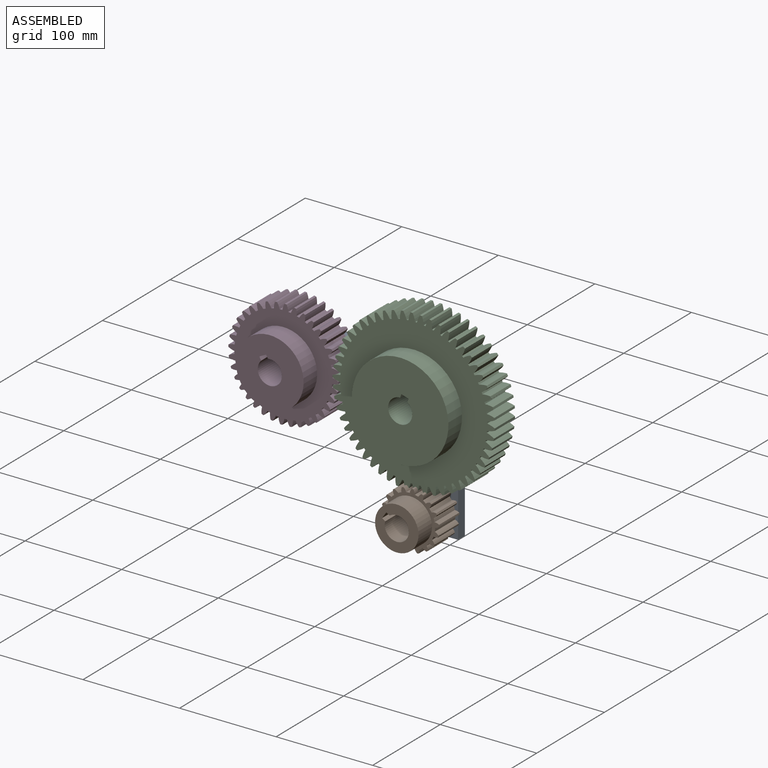
[diagram: assembled view]
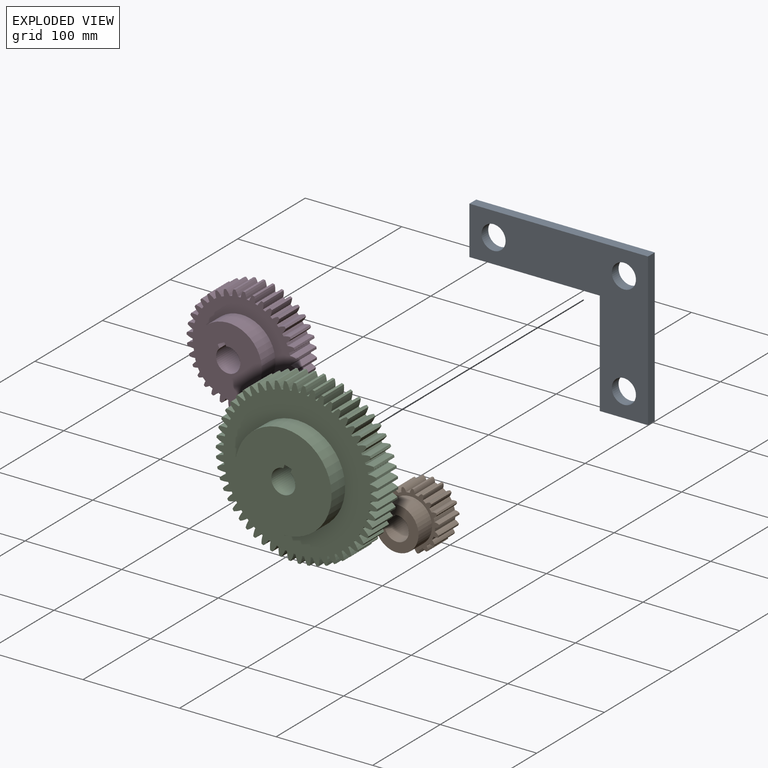
[diagram: exploded view]
GUIDED TOUR — MATED ASSEMBLY (Onshape document e4bec5e372876e78c3829ebe, AutoMate assembly e4bec5e372876e78c3829ebe_32165d2fcf4f0a64c382796b_5c9ba61deebb331a1b30283e_default)

This assembly has 4 components, labeled P0..P3 below (a component is one placed occurrence of a part; the same part can appear more than once), held together by 3 mates. A mate is a constraint between two components; its type names the relative motion it leaves free:
  REVOLUTE — leaves rotation about the listed axis free (a hinge).
Axis/direction vectors are unit vectors and 'through' points are millimeter coordinates, both in the assembly's world frame.

MATES
  1. REVOLUTE "Revolute 1": P0 <-> P3, axis (0.000, 1.000, 0.000) through (-47.42, -5.87, 16.33) mm
  2. REVOLUTE "Revolute 2": P0 <-> P2, axis (0.000, 1.000, 0.000) through (87.58, -5.87, 16.33) mm
  3. REVOLUTE "Revolute 3": P0 <-> P1, axis (0.000, -1.000, 0.000) through (87.58, -5.87, -91.67) mm

ASSEMBLY ORDER
  1. P1 — the base component [order verified]
  2. P2 [order verified]
  3. P3 [order verified]
  4. P0 [order verified]
Order-tag legend:
  [order verified] — this step's position reverses a verified removal order: the component was checked to insert without passing through the ones already placed.

Of the 4 components, 4 carry the full construction recipe — the FeatureScript program that regenerates the part's solid from scratch; the rest are supplied as boundary geometry only.
Each toured component is shown spotlighted twice — in the assembled view, then in the exploded view, where a leader line traces a displaced component back to its assembled socket (saturated green if recipe-attached, orange if geometry-only; every other component desaturated gray) — followed by its recipe or geometry summary and the mates that hold it.
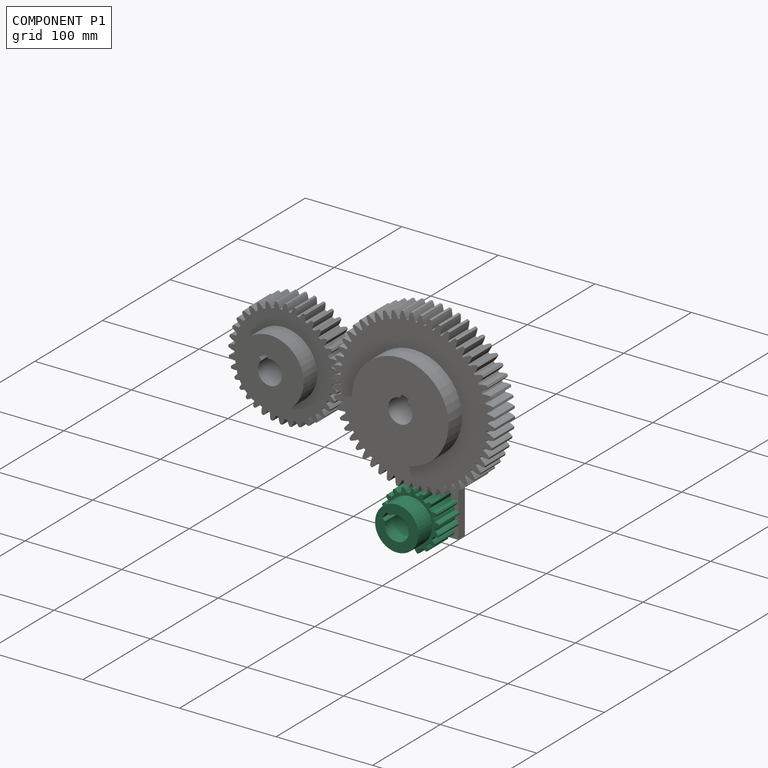
[diagram: component P1 — assembled]
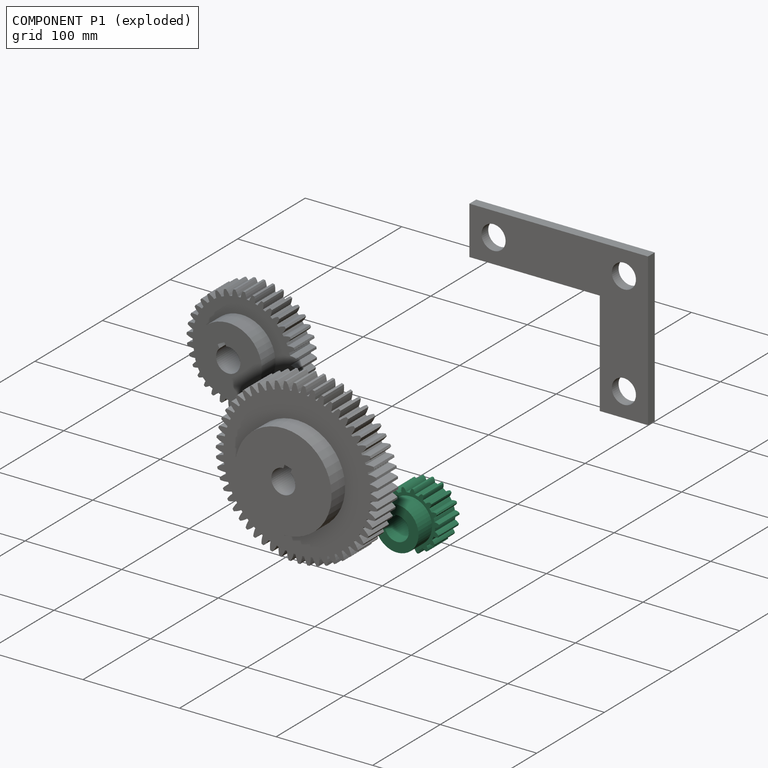
[diagram: component P1 — exploded]
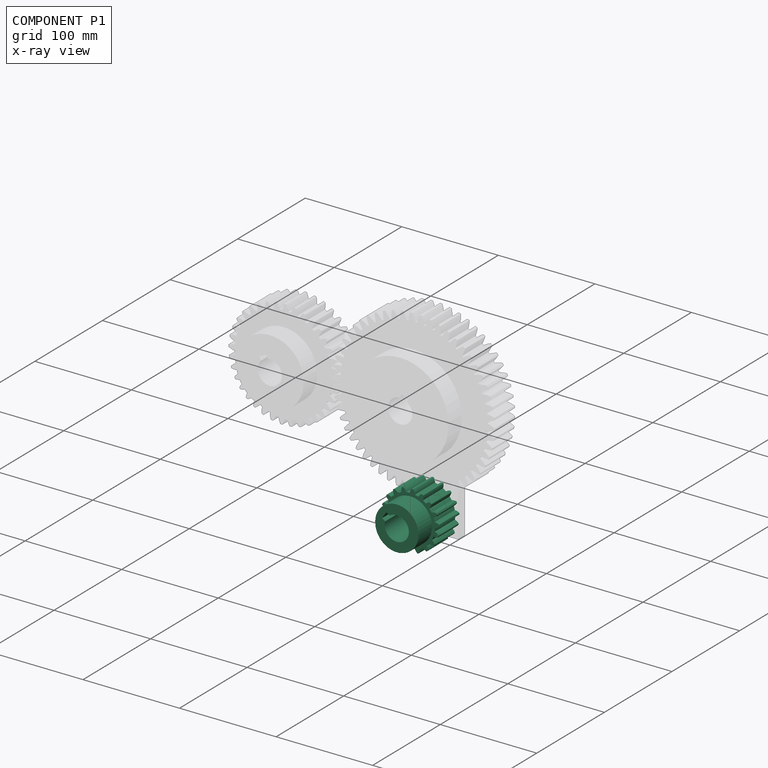
[diagram: component P1 — x-ray view]
COMPONENT P1 — recipe-attached (CADFS 00927240, mesh-verified: the recipe's output STEP matches this component's geometry to below the mesh-comparison resolution (tessellation chordal tolerance ~0.147 mm)).
Held by: REVOLUTE mate "Revolute 3" to P0.
Construction recipe (FeatureScript — the CAD program that rebuilds this solid; sketch coordinates are in the units given by the * unit suffixes, e.g. mm):

FeatureScript 1511;
import(path : "onshape/std/geometry.fs", version : "1511.0");
import(path : "onshape/std/common.fs", version : "1511.0");
const mm = millimeter;
const VERTEX = EntityType.VERTEX;
const EDGE = EntityType.EDGE;
const FACE = EntityType.FACE;
const BODY = EntityType.BODY;
function v(x, y){return vector(x, y);}
function OD(order){return orderDisambiguation(order);}
function OSD(set){return originalSetDisambiguation(set);}
function TD(topology){return topologyDisambiguation(topology);}
function TDD(query){return trueDependencyDisambiguation(query);}
function sQuery(a, b, c) {return sketchEntityQuery(a, b, c);}

annotation { "Feature Type Name" : "Feature", "Feature Type Description" : "" }
export const myFeature = defineFeature(function(context is Context, id is Id, definition is map)
    precondition{}
    {
        {
            var Q0;
            Q0=qCreatedBy(makeId("Front.planeOp"),FACE);
            var sketch = newSketch(context, id + "F0", { "sketchPlane" : qUnion([Q0])});
            skCircle(sketch, "E0", {"center": v(0, 0) * mm, "radius": 25.6 * mm});
            skSolve(sketch);
        }
        {
            var Q0;
            Q0=qSketchRegion(id+"F0",true);
            extrude(context, id + "F1", {"entities" : qUnion([Q0]), "depth" : 30 * mm, "offsetDistance" : 25 * mm});
        }
        {
            var Q0;
            Q0=qCreatedBy(makeId("Front.planeOp"),FACE);
            var sketch = newSketch(context, id + "F2", { "sketchPlane" : qUnion([Q0])});
            skArc(sketch, "E1", {"start": v(2.57, 25.47) * mm, "mid": v(0, 25.6) * mm, "end": v(-2.57, 25.47) * mm});
            skCircle(sketch, "E2", {"center": v(0, 0) * mm, "radius": 27 * mm, "construction": true});
            skArc(sketch, "E3", {"start": v(0.91, 29.99) * mm, "mid": v(0, 30) * mm, "end": v(-0.91, 29.99) * mm});
            skLineSegment(sketch, "E4", {"start": v(0, 0) * mm, "end": v(-2.35, 26.9) * mm, "construction": true});
            skLineSegment(sketch, "E5", {"start": v(-2.35, 26.9) * mm, "end": v(5.99, 24.89) * mm, "construction": true});
            skArc(sketch, "E6", {"start": v(-0.91, 29.99) * mm, "mid": v(-2.07, 27.85) * mm, "end": v(-2.57, 25.47) * mm});
            skArc(sketch, "E7.MirrorC", {"start": v(0.91, 29.99) * mm, "mid": v(2.07, 27.85) * mm, "end": v(2.57, 25.47) * mm});
            skLineSegment(sketch, "E8.MirrorCS", {"start": v(0, 0) * mm, "end": v(2.35, 26.9) * mm, "construction": true});
            skSolve(sketch);
        }
        {
            var Q0;
            Q0=qSketchRegion(id+"F2",true);
            var Q1;
            Q1=qConstructionFilter(qBodyType(qCreatedBy(id+"F2",EDGE),BodyType.WIRE),ConstructionObject.NO);
            var Q2;
            Q2=makeQuery(id+"F1.opExtrude","CAP_FACE",FACE,{"disambiguationData":[OSD([sQuery(id+"F0.wireOp",EDGE,"E0")])],"isStart":false});
            extrude(context, id + "F3", {"entities" : qUnion([Q0]), "surfaceEntities" : qUnion([Q1]), "endBound" : BoundingType.UP_TO_SURFACE, "depth" : 25 * mm, "endBoundEntityFace" : qUnion([Q2]), "offsetDistance" : 25 * mm});
        }
        {
            var Q0;
            Q0=makeQuery(id+"F3.opExtrude","SWEPT_BODY",BODY,{"disambiguationData":[OSD([sQuery(id+"F2.wireOp",EDGE,"E1"),sQuery(id+"F2.wireOp",EDGE,"E3"),sQuery(id+"F2.wireOp",EDGE,"E6"),sQuery(id+"F2.wireOp",EDGE,"E7.MirrorC")])]});
            var Q1;
            Q1=makeQuery(id+"F1.opExtrude","SWEPT_FACE",FACE,{"disambiguationData":[OSD([sQuery(id+"F0.wireOp",EDGE,"E0")])]});
            var Q2;
            Q2=makeQuery(id+"F1.opExtrude","SWEPT_BODY",BODY,{"disambiguationData":[OSD([sQuery(id+"F0.wireOp",EDGE,"E0")])]});
            circularPattern(context, id + "F4", {"operationType" : NewBodyOperationType.ADD, "entities" : qUnion([Q0]), "axis" : qUnion([Q1]), "angle" : 360 * degree, "instanceCount" : 18, "equalSpace" : true});
        }
        {
            var Q0;
            {var subQ0=makeQuery(id+"F3.opExtrude","CAP_FACE",FACE,{"disambiguationData":[OSD([sQuery(id+"F2.wireOp",EDGE,"27ea40b5-a951-41fe-b2b0-23b0c8f32f99"),sQuery(id+"F2.wireOp",EDGE,"g5MLrJZe-8DIj-dw4J-t7d3-wYIBbitemDrg"),sQuery(id+"F2.wireOp",EDGE,"a7c40835-1b0c-4428-97f4-bc1f4e4d2cdc0.MirrorCS"),sQuery(id+"F2.wireOp",EDGE,"71bf0348-7fa4-4463-ad31-61e3cc7938440.MirrorCS"),sQuery(id+"F2.wireOp",EDGE,"zAWKabWg-Dy0p-7wie-48dv-3QK1t6ZuBW5s"),sQuery(id+"F2.wireOp",EDGE,"8dd9605d-b27a-4633-b43e-2126b32a17ce.trimOffspring")])],"isStart":false});Q0=makeQuery(id+"F4.boolean.opBoolean","MERGE",FACE,{"derivedFrom":[makeQuery(id+"F1.opExtrude","CAP_FACE",FACE,{"disambiguationData":[OSD([sQuery(id+"F0.wireOp",EDGE,"E0")])],"isStart":false}),subQ0,makeQuery(id+"F4.opPattern","COPY",FACE,{"derivedFrom":subQ0,"instanceName":"1"}),makeQuery(id+"F4.opPattern","COPY",FACE,{"derivedFrom":subQ0,"instanceName":"2"}),makeQuery(id+"F4.opPattern","COPY",FACE,{"derivedFrom":subQ0,"instanceName":"3"}),makeQuery(id+"F4.opPattern","COPY",FACE,{"derivedFrom":subQ0,"instanceName":"4"}),makeQuery(id+"F4.opPattern","COPY",FACE,{"derivedFrom":subQ0,"instanceName":"5"}),makeQuery(id+"F4.opPattern","COPY",FACE,{"derivedFrom":subQ0,"instanceName":"6"}),makeQuery(id+"F4.opPattern","COPY",FACE,{"derivedFrom":subQ0,"instanceName":"7"}),makeQuery(id+"F4.opPattern","COPY",FACE,{"derivedFrom":subQ0,"instanceName":"8"}),makeQuery(id+"F4.opPattern","COPY",FACE,{"derivedFrom":subQ0,"instanceName":"9"}),makeQuery(id+"F4.opPattern","COPY",FACE,{"derivedFrom":subQ0,"instanceName":"10"}),makeQuery(id+"F4.opPattern","COPY",FACE,{"derivedFrom":subQ0,"instanceName":"11"}),makeQuery(id+"F4.opPattern","COPY",FACE,{"derivedFrom":subQ0,"instanceName":"12"}),makeQuery(id+"F4.opPattern","COPY",FACE,{"derivedFrom":subQ0,"instanceName":"13"}),makeQuery(id+"F4.opPattern","COPY",FACE,{"derivedFrom":subQ0,"instanceName":"14"}),makeQuery(id+"F4.opPattern","COPY",FACE,{"derivedFrom":subQ0,"instanceName":"15"}),makeQuery(id+"F4.opPattern","COPY",FACE,{"derivedFrom":subQ0,"instanceName":"16"}),makeQuery(id+"F4.opPattern","COPY",FACE,{"derivedFrom":subQ0,"instanceName":"17"}),makeQuery(id+"F4.opPattern","COPY",FACE,{"derivedFrom":subQ0,"instanceName":"18"}),makeQuery(id+"F4.opPattern","COPY",FACE,{"derivedFrom":subQ0,"instanceName":"19"}),makeQuery(id+"F4.opPattern","COPY",FACE,{"derivedFrom":subQ0,"instanceName":"20"}),makeQuery(id+"F4.opPattern","COPY",FACE,{"derivedFrom":subQ0,"instanceName":"21"}),makeQuery(id+"F4.opPattern","COPY",FACE,{"derivedFrom":subQ0,"instanceName":"22"}),makeQuery(id+"F4.opPattern","COPY",FACE,{"derivedFrom":subQ0,"instanceName":"23"}),makeQuery(id+"F4.opPattern","COPY",FACE,{"derivedFrom":subQ0,"instanceName":"24"}),makeQuery(id+"F4.opPattern","COPY",FACE,{"derivedFrom":subQ0,"instanceName":"25"}),makeQuery(id+"F4.opPattern","COPY",FACE,{"derivedFrom":subQ0,"instanceName":"26"}),makeQuery(id+"F4.opPattern","COPY",FACE,{"derivedFrom":subQ0,"instanceName":"27"}),makeQuery(id+"F4.opPattern","COPY",FACE,{"derivedFrom":subQ0,"instanceName":"28"}),makeQuery(id+"F4.opPattern","COPY",FACE,{"derivedFrom":subQ0,"instanceName":"29"}),makeQuery(id+"F4.opPattern","COPY",FACE,{"derivedFrom":subQ0,"instanceName":"30"}),makeQuery(id+"F4.opPattern","COPY",FACE,{"derivedFrom":subQ0,"instanceName":"31"}),makeQuery(id+"F4.opPattern","COPY",FACE,{"derivedFrom":subQ0,"instanceName":"32"}),makeQuery(id+"F4.opPattern","COPY",FACE,{"derivedFrom":subQ0,"instanceName":"33"}),makeQuery(id+"F4.opPattern","COPY",FACE,{"derivedFrom":subQ0,"instanceName":"34"}),makeQuery(id+"F4.opPattern","COPY",FACE,{"derivedFrom":subQ0,"instanceName":"35"}),makeQuery(id+"F4.opPattern","COPY",FACE,{"derivedFrom":subQ0,"instanceName":"36"}),makeQuery(id+"F4.opPattern","COPY",FACE,{"derivedFrom":subQ0,"instanceName":"37"}),makeQuery(id+"F4.opPattern","COPY",FACE,{"derivedFrom":subQ0,"instanceName":"38"}),makeQuery(id+"F4.opPattern","COPY",FACE,{"derivedFrom":subQ0,"instanceName":"39"}),makeQuery(id+"F4.opPattern","COPY",FACE,{"derivedFrom":subQ0,"instanceName":"40"}),makeQuery(id+"F4.opPattern","COPY",FACE,{"derivedFrom":subQ0,"instanceName":"41"}),makeQuery(id+"F4.opPattern","COPY",FACE,{"derivedFrom":subQ0,"instanceName":"42"}),makeQuery(id+"F4.opPattern","COPY",FACE,{"derivedFrom":subQ0,"instanceName":"43"}),makeQuery(id+"F4.opPattern","COPY",FACE,{"derivedFrom":subQ0,"instanceName":"44"}),makeQuery(id+"F4.opPattern","COPY",FACE,{"derivedFrom":subQ0,"instanceName":"45"}),makeQuery(id+"F4.opPattern","COPY",FACE,{"derivedFrom":subQ0,"instanceName":"46"}),makeQuery(id+"F4.opPattern","COPY",FACE,{"derivedFrom":subQ0,"instanceName":"47"}),makeQuery(id+"F4.opPattern","COPY",FACE,{"derivedFrom":subQ0,"instanceName":"48"}),makeQuery(id+"F4.opPattern","COPY",FACE,{"derivedFrom":subQ0,"instanceName":"49"}),makeQuery(id+"F4.opPattern","COPY",FACE,{"derivedFrom":subQ0,"instanceName":"50"}),makeQuery(id+"F4.opPattern","COPY",FACE,{"derivedFrom":subQ0,"instanceName":"51"}),makeQuery(id+"F4.opPattern","COPY",FACE,{"derivedFrom":subQ0,"instanceName":"52"}),makeQuery(id+"F4.opPattern","COPY",FACE,{"derivedFrom":subQ0,"instanceName":"53"}),makeQuery(id+"F4.opPattern","COPY",FACE,{"derivedFrom":subQ0,"instanceName":"54"}),makeQuery(id+"F4.opPattern","COPY",FACE,{"derivedFrom":subQ0,"instanceName":"55"}),makeQuery(id+"F4.opPattern","COPY",FACE,{"derivedFrom":subQ0,"instanceName":"56"}),makeQuery(id+"F4.opPattern","COPY",FACE,{"derivedFrom":subQ0,"instanceName":"57"}),makeQuery(id+"F4.opPattern","COPY",FACE,{"derivedFrom":subQ0,"instanceName":"58"}),makeQuery(id+"F4.opPattern","COPY",FACE,{"derivedFrom":subQ0,"instanceName":"59"}),makeQuery(id+"F4.opPattern","COPY",FACE,{"derivedFrom":subQ0,"instanceName":"60"}),makeQuery(id+"F4.opPattern","COPY",FACE,{"derivedFrom":subQ0,"instanceName":"61"}),makeQuery(id+"F4.opPattern","COPY",FACE,{"derivedFrom":subQ0,"instanceName":"62"}),makeQuery(id+"F4.opPattern","COPY",FACE,{"derivedFrom":subQ0,"instanceName":"63"}),makeQuery(id+"F4.opPattern","COPY",FACE,{"derivedFrom":subQ0,"instanceName":"64"}),makeQuery(id+"F4.opPattern","COPY",FACE,{"derivedFrom":subQ0,"instanceName":"65"}),makeQuery(id+"F4.opPattern","COPY",FACE,{"derivedFrom":subQ0,"instanceName":"66"}),makeQuery(id+"F4.opPattern","COPY",FACE,{"derivedFrom":subQ0,"instanceName":"67"}),makeQuery(id+"F4.opPattern","COPY",FACE,{"derivedFrom":subQ0,"instanceName":"68"}),makeQuery(id+"F4.opPattern","COPY",FACE,{"derivedFrom":subQ0,"instanceName":"69"}),makeQuery(id+"F4.opPattern","COPY",FACE,{"derivedFrom":subQ0,"instanceName":"70"}),makeQuery(id+"F4.opPattern","COPY",FACE,{"derivedFrom":subQ0,"instanceName":"71"}),makeQuery(id+"F4.opPattern","COPY",FACE,{"derivedFrom":subQ0,"instanceName":"72"}),makeQuery(id+"F4.opPattern","COPY",FACE,{"derivedFrom":subQ0,"instanceName":"73"}),makeQuery(id+"F4.opPattern","COPY",FACE,{"derivedFrom":subQ0,"instanceName":"74"})]});}
            var sketch = newSketch(context, id + "F5", { "sketchPlane" : qUnion([Q0])});
            skCircle(sketch, "E9", {"center": v(0, 0) * mm, "radius": 22.5 * mm});
            skSolve(sketch);
        }
        {
            var Q0;
            Q0=qSketchRegion(id+"F5",true);
            extrude(context, id + "F6", {"entities" : qUnion([Q0]), "operationType" : NewBodyOperationType.ADD, "depth" : 20 * mm, "offsetDistance" : 25 * mm});
        }
        {
            var Q0;
            Q0=qCreatedBy(makeId("Front.planeOp"),FACE);
            var sketch = newSketch(context, id + "F7", { "sketchPlane" : qUnion([Q0])});
            skLineSegment(sketch, "E10.top", {"start": v(-4, 15.8) * mm, "end": v(4, 15.8) * mm});
            skLineSegment(sketch, "E10.left", {"start": v(-4, 11.84) * mm, "end": v(-4, 15.8) * mm});
            skLineSegment(sketch, "E10.right", {"start": v(4, 11.84) * mm, "end": v(4, 11.84) * mm});
            skPoint(sketch, "E11.orphan", {"position": v(-4, 0) * mm});
            skLineSegment(sketch, "E12", {"start": v(4, 11.84) * mm, "end": v(4, 15.8) * mm});
            skArc(sketch, "E13", {"start": v(-4, 11.84) * mm, "mid": v(0, -12.5) * mm, "end": v(4, 11.84) * mm});
            skArc(sketch, "E14", {"start": v(4, 11.84) * mm, "mid": v(0, 12.5) * mm, "end": v(-4, 11.84) * mm, "construction": true});
            skSolve(sketch);
        }
        {
            var Q0;
            Q0=qSketchRegion(id+"F7",true);
            extrude(context, id + "F8", {"entities" : qUnion([Q0]), "operationType" : NewBodyOperationType.REMOVE, "endBound" : BoundingType.THROUGH_ALL, "depth" : 25 * mm, "offsetDistance" : 25 * mm});
        }
        {
            var Q0;
            Q0=makeQuery(id+"F8.boolean.opBoolean","COPY",EDGE,{"derivedFrom":makeQuery(id+"F8.opExtrude","SWEPT_EDGE",EDGE,{"disambiguationData":[OSD([sQuery(id+"F7.wireOp",EDGE,"E10.top"),sQuery(id+"F7.wireOp",EDGE,"E10.left")])]})});
            var Q1;
            Q1=makeQuery(id+"F8.boolean.opBoolean","COPY",EDGE,{"derivedFrom":makeQuery(id+"F8.opExtrude","SWEPT_EDGE",EDGE,{"disambiguationData":[OSD([sQuery(id+"F7.wireOp",EDGE,"E10.top"),sQuery(id+"F7.wireOp",EDGE,"E12")])]})});
            fillet(context, id + "F9", {"entities" : qUnion([Q0, Q1]), "radius" : 0.2 * mm, "tangentPropagation" : true, "allowEdgeOverflow" : false});
        }
    });
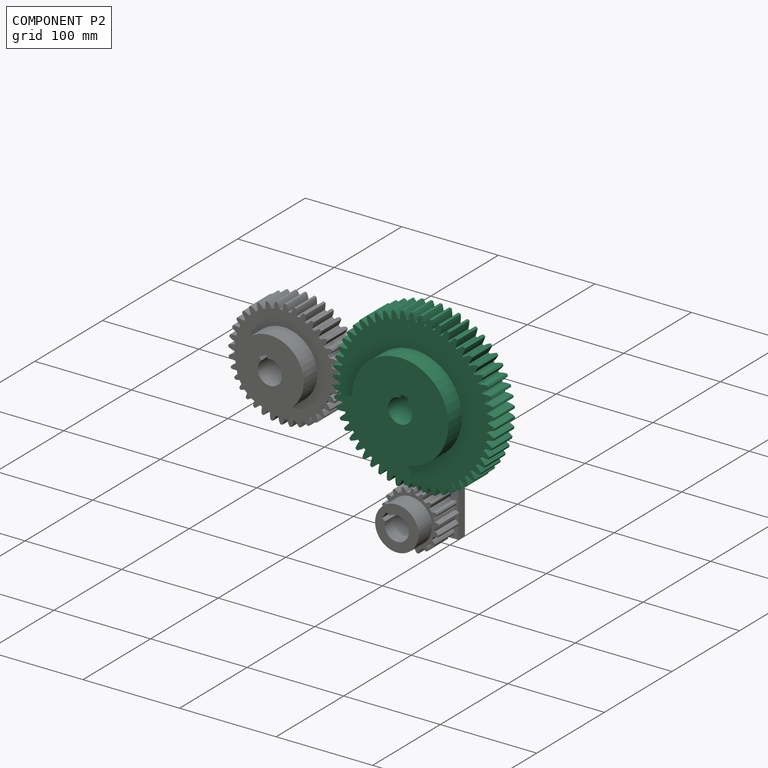
[diagram: component P2 — assembled]
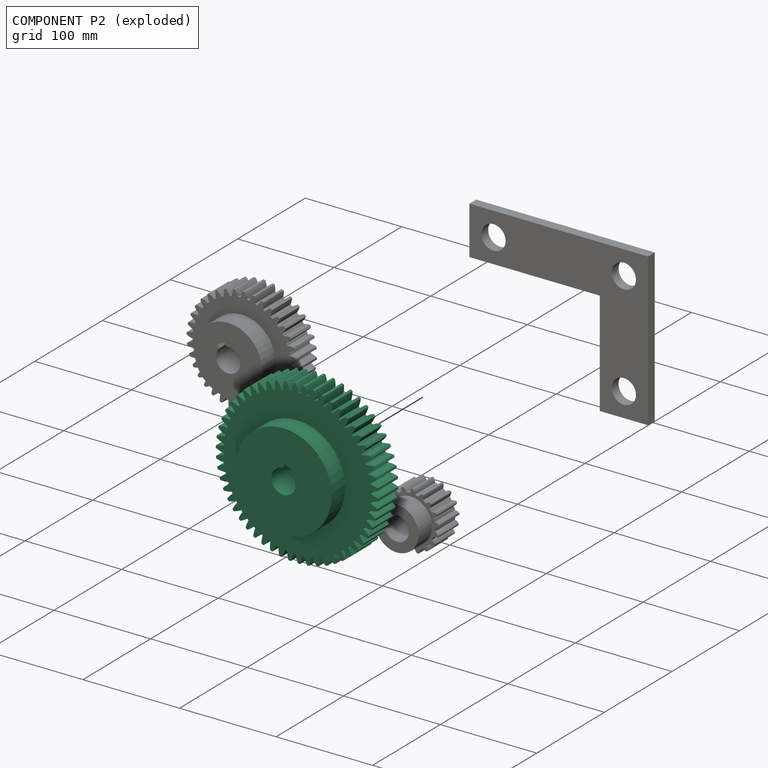
[diagram: component P2 — exploded]
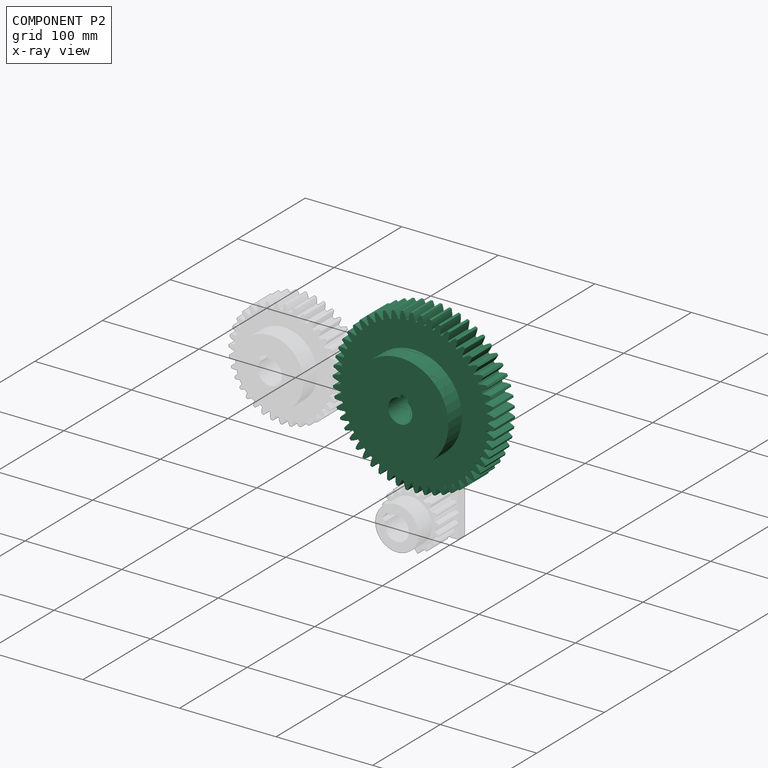
[diagram: component P2 — x-ray view]
COMPONENT P2 — recipe-attached (CADFS 00927239, mesh-verified: the recipe's output STEP matches this component's geometry to below the mesh-comparison resolution (tessellation chordal tolerance ~0.364 mm)).
Held by: REVOLUTE mate "Revolute 2" to P0.
Construction recipe (FeatureScript — the CAD program that rebuilds this solid; sketch coordinates are in the units given by the * unit suffixes, e.g. mm):

FeatureScript 1511;
import(path : "onshape/std/geometry.fs", version : "1511.0");
import(path : "onshape/std/common.fs", version : "1511.0");
const mm = millimeter;
const VERTEX = EntityType.VERTEX;
const EDGE = EntityType.EDGE;
const FACE = EntityType.FACE;
const BODY = EntityType.BODY;
function v(x, y){return vector(x, y);}
function OD(order){return orderDisambiguation(order);}
function OSD(set){return originalSetDisambiguation(set);}
function TD(topology){return topologyDisambiguation(topology);}
function TDD(query){return trueDependencyDisambiguation(query);}
function sQuery(a, b, c) {return sketchEntityQuery(a, b, c);}

annotation { "Feature Type Name" : "Feature", "Feature Type Description" : "" }
export const myFeature = defineFeature(function(context is Context, id is Id, definition is map)
    precondition{}
    {
        {
            var Q0;
            Q0=qCreatedBy(makeId("Front.planeOp"),FACE);
            var sketch = newSketch(context, id + "F0", { "sketchPlane" : qUnion([Q0])});
            skCircle(sketch, "E0", {"center": v(0, 0) * mm, "radius": 76.12 * mm});
            skSolve(sketch);
        }
        {
            var Q0;
            Q0=qSketchRegion(id+"F0",true);
            extrude(context, id + "F1", {"entities" : qUnion([Q0]), "depth" : 30 * mm, "offsetDistance" : 25 * mm});
        }
        {
            var Q0;
            Q0=qCreatedBy(makeId("Front.planeOp"),FACE);
            var sketch = newSketch(context, id + "F2", { "sketchPlane" : qUnion([Q0])});
            skArc(sketch, "E1", {"start": v(3.5, 76.03) * mm, "mid": v(0, 76.12) * mm, "end": v(-3.5, 76.03) * mm});
            skCircle(sketch, "E2", {"center": v(0, 0) * mm, "radius": 81 * mm, "construction": true});
            skArc(sketch, "E3", {"start": v(1.15, 84) * mm, "mid": v(0, 84) * mm, "end": v(-1.15, 84) * mm});
            skLineSegment(sketch, "E4", {"start": v(0, 0) * mm, "end": v(-2.36, 80.97) * mm, "construction": true});
            skLineSegment(sketch, "E5", {"start": v(-2.36, 80.97) * mm, "end": v(23.94, 72.25) * mm, "construction": true});
            skArc(sketch, "E6", {"start": v(-1.15, 84) * mm, "mid": v(-2.63, 80.1) * mm, "end": v(-3.5, 76.03) * mm});
            skArc(sketch, "E7.MirrorC", {"start": v(1.15, 84) * mm, "mid": v(2.63, 80.1) * mm, "end": v(3.5, 76.03) * mm});
            skLineSegment(sketch, "E8.MirrorCS", {"start": v(0, 0) * mm, "end": v(2.36, 80.97) * mm, "construction": true});
            skSolve(sketch);
        }
        {
            var Q0;
            Q0=qSketchRegion(id+"F2",true);
            var Q1;
            Q1=qConstructionFilter(qBodyType(qCreatedBy(id+"F2",EDGE),BodyType.WIRE),ConstructionObject.NO);
            var Q2;
            Q2=makeQuery(id+"F1.opExtrude","CAP_FACE",FACE,{"disambiguationData":[OSD([sQuery(id+"F0.wireOp",EDGE,"E0")])],"isStart":false});
            extrude(context, id + "F3", {"entities" : qUnion([Q0]), "surfaceEntities" : qUnion([Q1]), "endBound" : BoundingType.UP_TO_SURFACE, "depth" : 25 * mm, "endBoundEntityFace" : qUnion([Q2]), "offsetDistance" : 25 * mm});
        }
        {
            var Q0;
            Q0=makeQuery(id+"F3.opExtrude","SWEPT_BODY",BODY,{"disambiguationData":[OSD([sQuery(id+"F2.wireOp",EDGE,"E1"),sQuery(id+"F2.wireOp",EDGE,"E3"),sQuery(id+"F2.wireOp",EDGE,"E6"),sQuery(id+"F2.wireOp",EDGE,"E7.MirrorC")])]});
            var Q1;
            Q1=makeQuery(id+"F1.opExtrude","SWEPT_FACE",FACE,{"disambiguationData":[OSD([sQuery(id+"F0.wireOp",EDGE,"E0")])]});
            var Q2;
            Q2=makeQuery(id+"F1.opExtrude","SWEPT_BODY",BODY,{"disambiguationData":[OSD([sQuery(id+"F0.wireOp",EDGE,"E0")])]});
            circularPattern(context, id + "F4", {"operationType" : NewBodyOperationType.ADD, "entities" : qUnion([Q0]), "axis" : qUnion([Q1]), "angle" : 360 * degree, "instanceCount" : 54, "equalSpace" : true});
        }
        {
            var Q0;
            {var subQ0=makeQuery(id+"F3.opExtrude","CAP_FACE",FACE,{"disambiguationData":[OSD([sQuery(id+"F2.wireOp",EDGE,"27ea40b5-a951-41fe-b2b0-23b0c8f32f99"),sQuery(id+"F2.wireOp",EDGE,"g5MLrJZe-8DIj-dw4J-t7d3-wYIBbitemDrg"),sQuery(id+"F2.wireOp",EDGE,"a7c40835-1b0c-4428-97f4-bc1f4e4d2cdc0.MirrorCS"),sQuery(id+"F2.wireOp",EDGE,"71bf0348-7fa4-4463-ad31-61e3cc7938440.MirrorCS"),sQuery(id+"F2.wireOp",EDGE,"zAWKabWg-Dy0p-7wie-48dv-3QK1t6ZuBW5s"),sQuery(id+"F2.wireOp",EDGE,"8dd9605d-b27a-4633-b43e-2126b32a17ce.trimOffspring")])],"isStart":false});Q0=makeQuery(id+"F4.boolean.opBoolean","MERGE",FACE,{"derivedFrom":[makeQuery(id+"F1.opExtrude","CAP_FACE",FACE,{"disambiguationData":[OSD([sQuery(id+"F0.wireOp",EDGE,"E0")])],"isStart":false}),subQ0,makeQuery(id+"F4.opPattern","COPY",FACE,{"derivedFrom":subQ0,"instanceName":"1"}),makeQuery(id+"F4.opPattern","COPY",FACE,{"derivedFrom":subQ0,"instanceName":"2"}),makeQuery(id+"F4.opPattern","COPY",FACE,{"derivedFrom":subQ0,"instanceName":"3"}),makeQuery(id+"F4.opPattern","COPY",FACE,{"derivedFrom":subQ0,"instanceName":"4"}),makeQuery(id+"F4.opPattern","COPY",FACE,{"derivedFrom":subQ0,"instanceName":"5"}),makeQuery(id+"F4.opPattern","COPY",FACE,{"derivedFrom":subQ0,"instanceName":"6"}),makeQuery(id+"F4.opPattern","COPY",FACE,{"derivedFrom":subQ0,"instanceName":"7"}),makeQuery(id+"F4.opPattern","COPY",FACE,{"derivedFrom":subQ0,"instanceName":"8"}),makeQuery(id+"F4.opPattern","COPY",FACE,{"derivedFrom":subQ0,"instanceName":"9"}),makeQuery(id+"F4.opPattern","COPY",FACE,{"derivedFrom":subQ0,"instanceName":"10"}),makeQuery(id+"F4.opPattern","COPY",FACE,{"derivedFrom":subQ0,"instanceName":"11"}),makeQuery(id+"F4.opPattern","COPY",FACE,{"derivedFrom":subQ0,"instanceName":"12"}),makeQuery(id+"F4.opPattern","COPY",FACE,{"derivedFrom":subQ0,"instanceName":"13"}),makeQuery(id+"F4.opPattern","COPY",FACE,{"derivedFrom":subQ0,"instanceName":"14"}),makeQuery(id+"F4.opPattern","COPY",FACE,{"derivedFrom":subQ0,"instanceName":"15"}),makeQuery(id+"F4.opPattern","COPY",FACE,{"derivedFrom":subQ0,"instanceName":"16"}),makeQuery(id+"F4.opPattern","COPY",FACE,{"derivedFrom":subQ0,"instanceName":"17"}),makeQuery(id+"F4.opPattern","COPY",FACE,{"derivedFrom":subQ0,"instanceName":"18"}),makeQuery(id+"F4.opPattern","COPY",FACE,{"derivedFrom":subQ0,"instanceName":"19"}),makeQuery(id+"F4.opPattern","COPY",FACE,{"derivedFrom":subQ0,"instanceName":"20"}),makeQuery(id+"F4.opPattern","COPY",FACE,{"derivedFrom":subQ0,"instanceName":"21"}),makeQuery(id+"F4.opPattern","COPY",FACE,{"derivedFrom":subQ0,"instanceName":"22"}),makeQuery(id+"F4.opPattern","COPY",FACE,{"derivedFrom":subQ0,"instanceName":"23"}),makeQuery(id+"F4.opPattern","COPY",FACE,{"derivedFrom":subQ0,"instanceName":"24"}),makeQuery(id+"F4.opPattern","COPY",FACE,{"derivedFrom":subQ0,"instanceName":"25"}),makeQuery(id+"F4.opPattern","COPY",FACE,{"derivedFrom":subQ0,"instanceName":"26"}),makeQuery(id+"F4.opPattern","COPY",FACE,{"derivedFrom":subQ0,"instanceName":"27"}),makeQuery(id+"F4.opPattern","COPY",FACE,{"derivedFrom":subQ0,"instanceName":"28"}),makeQuery(id+"F4.opPattern","COPY",FACE,{"derivedFrom":subQ0,"instanceName":"29"}),makeQuery(id+"F4.opPattern","COPY",FACE,{"derivedFrom":subQ0,"instanceName":"30"}),makeQuery(id+"F4.opPattern","COPY",FACE,{"derivedFrom":subQ0,"instanceName":"31"}),makeQuery(id+"F4.opPattern","COPY",FACE,{"derivedFrom":subQ0,"instanceName":"32"}),makeQuery(id+"F4.opPattern","COPY",FACE,{"derivedFrom":subQ0,"instanceName":"33"}),makeQuery(id+"F4.opPattern","COPY",FACE,{"derivedFrom":subQ0,"instanceName":"34"}),makeQuery(id+"F4.opPattern","COPY",FACE,{"derivedFrom":subQ0,"instanceName":"35"}),makeQuery(id+"F4.opPattern","COPY",FACE,{"derivedFrom":subQ0,"instanceName":"36"}),makeQuery(id+"F4.opPattern","COPY",FACE,{"derivedFrom":subQ0,"instanceName":"37"}),makeQuery(id+"F4.opPattern","COPY",FACE,{"derivedFrom":subQ0,"instanceName":"38"}),makeQuery(id+"F4.opPattern","COPY",FACE,{"derivedFrom":subQ0,"instanceName":"39"}),makeQuery(id+"F4.opPattern","COPY",FACE,{"derivedFrom":subQ0,"instanceName":"40"}),makeQuery(id+"F4.opPattern","COPY",FACE,{"derivedFrom":subQ0,"instanceName":"41"}),makeQuery(id+"F4.opPattern","COPY",FACE,{"derivedFrom":subQ0,"instanceName":"42"}),makeQuery(id+"F4.opPattern","COPY",FACE,{"derivedFrom":subQ0,"instanceName":"43"}),makeQuery(id+"F4.opPattern","COPY",FACE,{"derivedFrom":subQ0,"instanceName":"44"}),makeQuery(id+"F4.opPattern","COPY",FACE,{"derivedFrom":subQ0,"instanceName":"45"}),makeQuery(id+"F4.opPattern","COPY",FACE,{"derivedFrom":subQ0,"instanceName":"46"}),makeQuery(id+"F4.opPattern","COPY",FACE,{"derivedFrom":subQ0,"instanceName":"47"}),makeQuery(id+"F4.opPattern","COPY",FACE,{"derivedFrom":subQ0,"instanceName":"48"}),makeQuery(id+"F4.opPattern","COPY",FACE,{"derivedFrom":subQ0,"instanceName":"49"}),makeQuery(id+"F4.opPattern","COPY",FACE,{"derivedFrom":subQ0,"instanceName":"50"}),makeQuery(id+"F4.opPattern","COPY",FACE,{"derivedFrom":subQ0,"instanceName":"51"}),makeQuery(id+"F4.opPattern","COPY",FACE,{"derivedFrom":subQ0,"instanceName":"52"}),makeQuery(id+"F4.opPattern","COPY",FACE,{"derivedFrom":subQ0,"instanceName":"53"}),makeQuery(id+"F4.opPattern","COPY",FACE,{"derivedFrom":subQ0,"instanceName":"54"}),makeQuery(id+"F4.opPattern","COPY",FACE,{"derivedFrom":subQ0,"instanceName":"55"}),makeQuery(id+"F4.opPattern","COPY",FACE,{"derivedFrom":subQ0,"instanceName":"56"}),makeQuery(id+"F4.opPattern","COPY",FACE,{"derivedFrom":subQ0,"instanceName":"57"}),makeQuery(id+"F4.opPattern","COPY",FACE,{"derivedFrom":subQ0,"instanceName":"58"}),makeQuery(id+"F4.opPattern","COPY",FACE,{"derivedFrom":subQ0,"instanceName":"59"}),makeQuery(id+"F4.opPattern","COPY",FACE,{"derivedFrom":subQ0,"instanceName":"60"}),makeQuery(id+"F4.opPattern","COPY",FACE,{"derivedFrom":subQ0,"instanceName":"61"}),makeQuery(id+"F4.opPattern","COPY",FACE,{"derivedFrom":subQ0,"instanceName":"62"}),makeQuery(id+"F4.opPattern","COPY",FACE,{"derivedFrom":subQ0,"instanceName":"63"}),makeQuery(id+"F4.opPattern","COPY",FACE,{"derivedFrom":subQ0,"instanceName":"64"}),makeQuery(id+"F4.opPattern","COPY",FACE,{"derivedFrom":subQ0,"instanceName":"65"}),makeQuery(id+"F4.opPattern","COPY",FACE,{"derivedFrom":subQ0,"instanceName":"66"}),makeQuery(id+"F4.opPattern","COPY",FACE,{"derivedFrom":subQ0,"instanceName":"67"}),makeQuery(id+"F4.opPattern","COPY",FACE,{"derivedFrom":subQ0,"instanceName":"68"}),makeQuery(id+"F4.opPattern","COPY",FACE,{"derivedFrom":subQ0,"instanceName":"69"}),makeQuery(id+"F4.opPattern","COPY",FACE,{"derivedFrom":subQ0,"instanceName":"70"}),makeQuery(id+"F4.opPattern","COPY",FACE,{"derivedFrom":subQ0,"instanceName":"71"}),makeQuery(id+"F4.opPattern","COPY",FACE,{"derivedFrom":subQ0,"instanceName":"72"}),makeQuery(id+"F4.opPattern","COPY",FACE,{"derivedFrom":subQ0,"instanceName":"73"}),makeQuery(id+"F4.opPattern","COPY",FACE,{"derivedFrom":subQ0,"instanceName":"74"})]});}
            var sketch = newSketch(context, id + "F5", { "sketchPlane" : qUnion([Q0])});
            skCircle(sketch, "E9", {"center": v(0, 0) * mm, "radius": 50 * mm});
            skSolve(sketch);
        }
        {
            var Q0;
            Q0=qSketchRegion(id+"F5",true);
            extrude(context, id + "F6", {"entities" : qUnion([Q0]), "operationType" : NewBodyOperationType.ADD, "depth" : 20 * mm, "offsetDistance" : 25 * mm});
        }
        {
            var Q0;
            Q0=qCreatedBy(makeId("Front.planeOp"),FACE);
            var sketch = newSketch(context, id + "F7", { "sketchPlane" : qUnion([Q0])});
            skLineSegment(sketch, "E10.top", {"start": v(-4, 15.8) * mm, "end": v(4, 15.8) * mm});
            skLineSegment(sketch, "E10.left", {"start": v(-4, 11.84) * mm, "end": v(-4, 15.8) * mm});
            skLineSegment(sketch, "E10.right", {"start": v(4, 11.84) * mm, "end": v(4, 11.84) * mm});
            skPoint(sketch, "E11.orphan", {"position": v(-4, 0) * mm});
            skLineSegment(sketch, "E12", {"start": v(4, 11.84) * mm, "end": v(4, 15.8) * mm});
            skArc(sketch, "E13", {"start": v(-4, 11.84) * mm, "mid": v(0, -12.5) * mm, "end": v(4, 11.84) * mm});
            skArc(sketch, "E14", {"start": v(4, 11.84) * mm, "mid": v(0, 12.5) * mm, "end": v(-4, 11.84) * mm, "construction": true});
            skSolve(sketch);
        }
        {
            var Q0;
            Q0=qSketchRegion(id+"F7",true);
            extrude(context, id + "F8", {"entities" : qUnion([Q0]), "operationType" : NewBodyOperationType.REMOVE, "endBound" : BoundingType.THROUGH_ALL, "depth" : 25 * mm, "offsetDistance" : 25 * mm});
        }
        {
            var Q0;
            Q0=makeQuery(id+"F8.boolean.opBoolean","COPY",EDGE,{"derivedFrom":makeQuery(id+"F8.opExtrude","SWEPT_EDGE",EDGE,{"disambiguationData":[OSD([sQuery(id+"F7.wireOp",EDGE,"E10.top"),sQuery(id+"F7.wireOp",EDGE,"E10.left")])]})});
            var Q1;
            Q1=makeQuery(id+"F8.boolean.opBoolean","COPY",EDGE,{"derivedFrom":makeQuery(id+"F8.opExtrude","SWEPT_EDGE",EDGE,{"disambiguationData":[OSD([sQuery(id+"F7.wireOp",EDGE,"E10.top"),sQuery(id+"F7.wireOp",EDGE,"E12")])]})});
            fillet(context, id + "F9", {"entities" : qUnion([Q0, Q1]), "radius" : 0.2 * mm, "tangentPropagation" : true, "allowEdgeOverflow" : false});
        }
    });
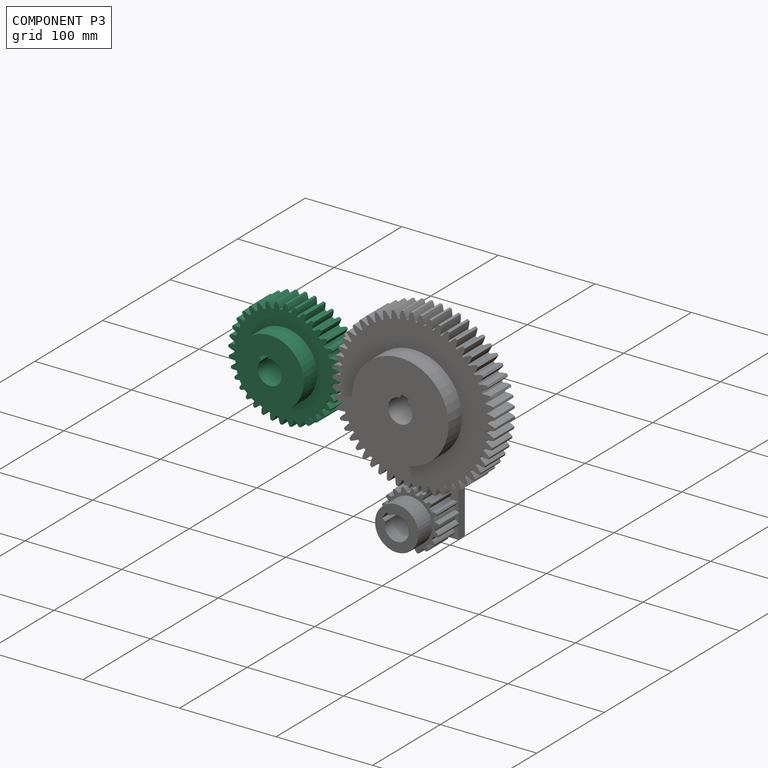
[diagram: component P3 — assembled]
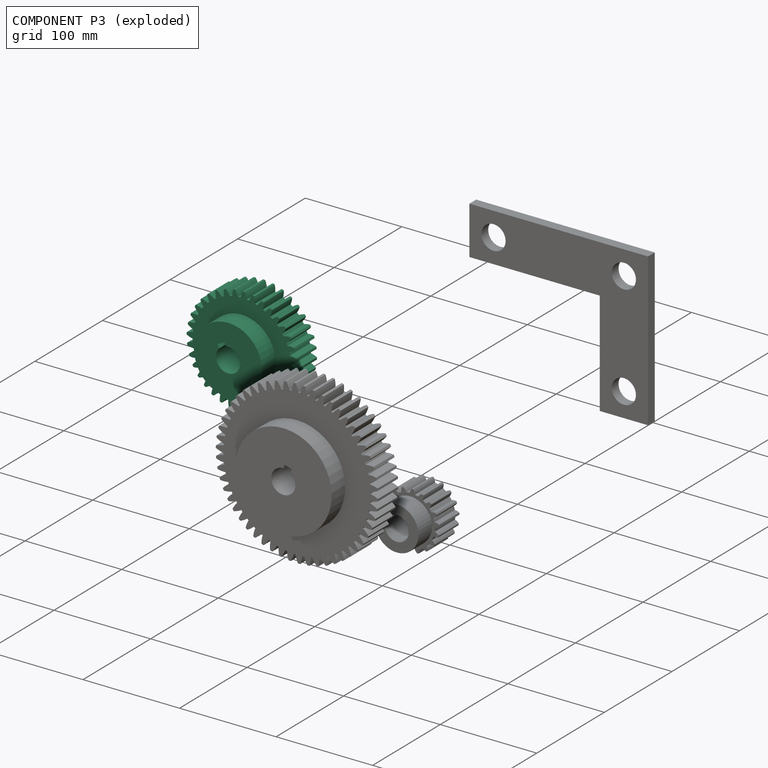
[diagram: component P3 — exploded]
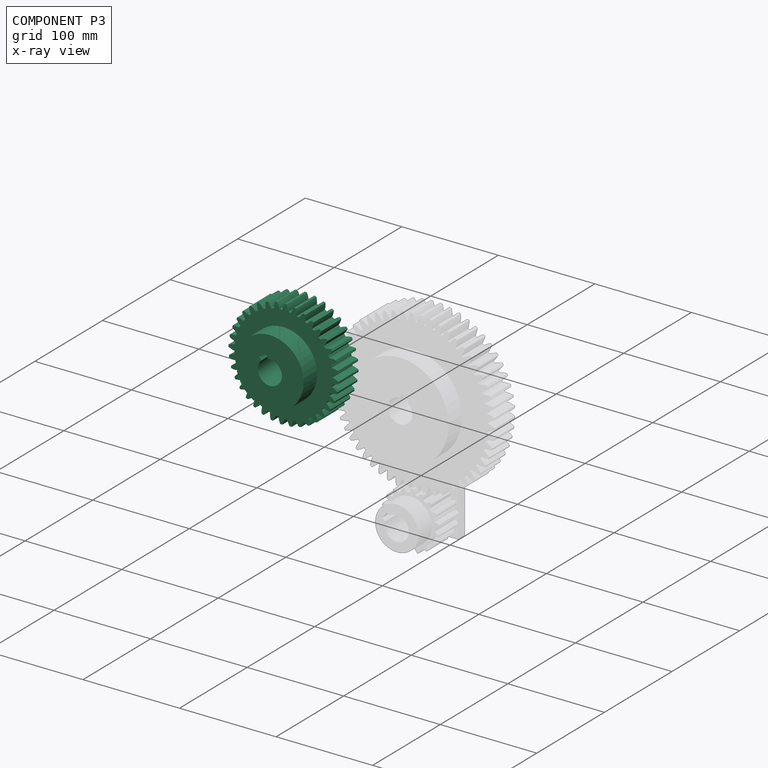
[diagram: component P3 — x-ray view]
COMPONENT P3 — recipe-attached (CADFS 00927238, mesh-verified: the recipe's output STEP matches this component's geometry to below the mesh-comparison resolution (tessellation chordal tolerance ~0.253 mm)).
Held by: REVOLUTE mate "Revolute 1" to P0.
Construction recipe (FeatureScript — the CAD program that rebuilds this solid; sketch coordinates are in the units given by the * unit suffixes, e.g. mm):

FeatureScript 1511;
import(path : "onshape/std/geometry.fs", version : "1511.0");
import(path : "onshape/std/common.fs", version : "1511.0");
const mm = millimeter;
const VERTEX = EntityType.VERTEX;
const EDGE = EntityType.EDGE;
const FACE = EntityType.FACE;
const BODY = EntityType.BODY;
function v(x, y){return vector(x, y);}
function OD(order){return orderDisambiguation(order);}
function OSD(set){return originalSetDisambiguation(set);}
function TD(topology){return topologyDisambiguation(topology);}
function TDD(query){return trueDependencyDisambiguation(query);}
function sQuery(a, b, c) {return sketchEntityQuery(a, b, c);}

annotation { "Feature Type Name" : "Feature", "Feature Type Description" : "" }
export const myFeature = defineFeature(function(context is Context, id is Id, definition is map)
    precondition{}
    {
        {
            var Q0;
            Q0=qCreatedBy(makeId("Front.planeOp"),FACE);
            var sketch = newSketch(context, id + "F0", { "sketchPlane" : qUnion([Q0])});
            skCircle(sketch, "E0", {"center": v(0, 0) * mm, "radius": 50.74 * mm});
            skSolve(sketch);
        }
        {
            var Q0;
            Q0=qSketchRegion(id+"F0",true);
            extrude(context, id + "F1", {"entities" : qUnion([Q0]), "depth" : 30 * mm, "offsetDistance" : 25 * mm});
        }
        {
            var Q0;
            Q0=qCreatedBy(makeId("Front.planeOp"),FACE);
            var sketch = newSketch(context, id + "F2", { "sketchPlane" : qUnion([Q0])});
            skArc(sketch, "E1", {"start": v(3.07, 50.65) * mm, "mid": v(0, 50.74) * mm, "end": v(-3.07, 50.65) * mm});
            skCircle(sketch, "E2", {"center": v(0, 0) * mm, "radius": 54 * mm, "construction": true});
            skArc(sketch, "E3", {"start": v(1.09, 56.99) * mm, "mid": v(0, 57) * mm, "end": v(-1.09, 56.99) * mm});
            skLineSegment(sketch, "E4", {"start": v(0, 0) * mm, "end": v(-2.36, 53.95) * mm, "construction": true});
            skLineSegment(sketch, "E5", {"start": v(-2.36, 53.95) * mm, "end": v(15.26, 48.4) * mm, "construction": true});
            skArc(sketch, "E6", {"start": v(-1.09, 56.99) * mm, "mid": v(-2.37, 53.9) * mm, "end": v(-3.07, 50.65) * mm});
            skArc(sketch, "E7.MirrorC", {"start": v(1.09, 56.99) * mm, "mid": v(2.37, 53.9) * mm, "end": v(3.07, 50.65) * mm});
            skLineSegment(sketch, "E8.MirrorCS", {"start": v(0, 0) * mm, "end": v(2.36, 53.95) * mm, "construction": true});
            skSolve(sketch);
        }
        {
            var Q0;
            Q0=qSketchRegion(id+"F2",true);
            var Q1;
            Q1=qConstructionFilter(qBodyType(qCreatedBy(id+"F2",EDGE),BodyType.WIRE),ConstructionObject.NO);
            var Q2;
            Q2=makeQuery(id+"F1.opExtrude","CAP_FACE",FACE,{"disambiguationData":[OSD([sQuery(id+"F0.wireOp",EDGE,"E0")])],"isStart":false});
            extrude(context, id + "F3", {"entities" : qUnion([Q0]), "surfaceEntities" : qUnion([Q1]), "endBound" : BoundingType.UP_TO_SURFACE, "depth" : 25 * mm, "endBoundEntityFace" : qUnion([Q2]), "offsetDistance" : 25 * mm});
        }
        {
            var Q0;
            Q0=makeQuery(id+"F3.opExtrude","SWEPT_BODY",BODY,{"disambiguationData":[OSD([sQuery(id+"F2.wireOp",EDGE,"E1"),sQuery(id+"F2.wireOp",EDGE,"E3"),sQuery(id+"F2.wireOp",EDGE,"E6"),sQuery(id+"F2.wireOp",EDGE,"E7.MirrorC")])]});
            var Q1;
            Q1=makeQuery(id+"F1.opExtrude","SWEPT_FACE",FACE,{"disambiguationData":[OSD([sQuery(id+"F0.wireOp",EDGE,"E0")])]});
            var Q2;
            Q2=makeQuery(id+"F1.opExtrude","SWEPT_BODY",BODY,{"disambiguationData":[OSD([sQuery(id+"F0.wireOp",EDGE,"E0")])]});
            circularPattern(context, id + "F4", {"operationType" : NewBodyOperationType.ADD, "entities" : qUnion([Q0]), "axis" : qUnion([Q1]), "angle" : 360 * degree, "instanceCount" : 36, "equalSpace" : true});
        }
        {
            var Q0;
            {var subQ0=makeQuery(id+"F3.opExtrude","CAP_FACE",FACE,{"disambiguationData":[OSD([sQuery(id+"F2.wireOp",EDGE,"27ea40b5-a951-41fe-b2b0-23b0c8f32f99"),sQuery(id+"F2.wireOp",EDGE,"g5MLrJZe-8DIj-dw4J-t7d3-wYIBbitemDrg"),sQuery(id+"F2.wireOp",EDGE,"a7c40835-1b0c-4428-97f4-bc1f4e4d2cdc0.MirrorCS"),sQuery(id+"F2.wireOp",EDGE,"71bf0348-7fa4-4463-ad31-61e3cc7938440.MirrorCS"),sQuery(id+"F2.wireOp",EDGE,"zAWKabWg-Dy0p-7wie-48dv-3QK1t6ZuBW5s"),sQuery(id+"F2.wireOp",EDGE,"8dd9605d-b27a-4633-b43e-2126b32a17ce.trimOffspring")])],"isStart":false});Q0=makeQuery(id+"F4.boolean.opBoolean","MERGE",FACE,{"derivedFrom":[makeQuery(id+"F1.opExtrude","CAP_FACE",FACE,{"disambiguationData":[OSD([sQuery(id+"F0.wireOp",EDGE,"E0")])],"isStart":false}),subQ0,makeQuery(id+"F4.opPattern","COPY",FACE,{"derivedFrom":subQ0,"instanceName":"1"}),makeQuery(id+"F4.opPattern","COPY",FACE,{"derivedFrom":subQ0,"instanceName":"2"}),makeQuery(id+"F4.opPattern","COPY",FACE,{"derivedFrom":subQ0,"instanceName":"3"}),makeQuery(id+"F4.opPattern","COPY",FACE,{"derivedFrom":subQ0,"instanceName":"4"}),makeQuery(id+"F4.opPattern","COPY",FACE,{"derivedFrom":subQ0,"instanceName":"5"}),makeQuery(id+"F4.opPattern","COPY",FACE,{"derivedFrom":subQ0,"instanceName":"6"}),makeQuery(id+"F4.opPattern","COPY",FACE,{"derivedFrom":subQ0,"instanceName":"7"}),makeQuery(id+"F4.opPattern","COPY",FACE,{"derivedFrom":subQ0,"instanceName":"8"}),makeQuery(id+"F4.opPattern","COPY",FACE,{"derivedFrom":subQ0,"instanceName":"9"}),makeQuery(id+"F4.opPattern","COPY",FACE,{"derivedFrom":subQ0,"instanceName":"10"}),makeQuery(id+"F4.opPattern","COPY",FACE,{"derivedFrom":subQ0,"instanceName":"11"}),makeQuery(id+"F4.opPattern","COPY",FACE,{"derivedFrom":subQ0,"instanceName":"12"}),makeQuery(id+"F4.opPattern","COPY",FACE,{"derivedFrom":subQ0,"instanceName":"13"}),makeQuery(id+"F4.opPattern","COPY",FACE,{"derivedFrom":subQ0,"instanceName":"14"}),makeQuery(id+"F4.opPattern","COPY",FACE,{"derivedFrom":subQ0,"instanceName":"15"}),makeQuery(id+"F4.opPattern","COPY",FACE,{"derivedFrom":subQ0,"instanceName":"16"}),makeQuery(id+"F4.opPattern","COPY",FACE,{"derivedFrom":subQ0,"instanceName":"17"}),makeQuery(id+"F4.opPattern","COPY",FACE,{"derivedFrom":subQ0,"instanceName":"18"}),makeQuery(id+"F4.opPattern","COPY",FACE,{"derivedFrom":subQ0,"instanceName":"19"}),makeQuery(id+"F4.opPattern","COPY",FACE,{"derivedFrom":subQ0,"instanceName":"20"}),makeQuery(id+"F4.opPattern","COPY",FACE,{"derivedFrom":subQ0,"instanceName":"21"}),makeQuery(id+"F4.opPattern","COPY",FACE,{"derivedFrom":subQ0,"instanceName":"22"}),makeQuery(id+"F4.opPattern","COPY",FACE,{"derivedFrom":subQ0,"instanceName":"23"}),makeQuery(id+"F4.opPattern","COPY",FACE,{"derivedFrom":subQ0,"instanceName":"24"}),makeQuery(id+"F4.opPattern","COPY",FACE,{"derivedFrom":subQ0,"instanceName":"25"}),makeQuery(id+"F4.opPattern","COPY",FACE,{"derivedFrom":subQ0,"instanceName":"26"}),makeQuery(id+"F4.opPattern","COPY",FACE,{"derivedFrom":subQ0,"instanceName":"27"}),makeQuery(id+"F4.opPattern","COPY",FACE,{"derivedFrom":subQ0,"instanceName":"28"}),makeQuery(id+"F4.opPattern","COPY",FACE,{"derivedFrom":subQ0,"instanceName":"29"}),makeQuery(id+"F4.opPattern","COPY",FACE,{"derivedFrom":subQ0,"instanceName":"30"}),makeQuery(id+"F4.opPattern","COPY",FACE,{"derivedFrom":subQ0,"instanceName":"31"}),makeQuery(id+"F4.opPattern","COPY",FACE,{"derivedFrom":subQ0,"instanceName":"32"}),makeQuery(id+"F4.opPattern","COPY",FACE,{"derivedFrom":subQ0,"instanceName":"33"}),makeQuery(id+"F4.opPattern","COPY",FACE,{"derivedFrom":subQ0,"instanceName":"34"}),makeQuery(id+"F4.opPattern","COPY",FACE,{"derivedFrom":subQ0,"instanceName":"35"}),makeQuery(id+"F4.opPattern","COPY",FACE,{"derivedFrom":subQ0,"instanceName":"36"}),makeQuery(id+"F4.opPattern","COPY",FACE,{"derivedFrom":subQ0,"instanceName":"37"}),makeQuery(id+"F4.opPattern","COPY",FACE,{"derivedFrom":subQ0,"instanceName":"38"}),makeQuery(id+"F4.opPattern","COPY",FACE,{"derivedFrom":subQ0,"instanceName":"39"}),makeQuery(id+"F4.opPattern","COPY",FACE,{"derivedFrom":subQ0,"instanceName":"40"}),makeQuery(id+"F4.opPattern","COPY",FACE,{"derivedFrom":subQ0,"instanceName":"41"}),makeQuery(id+"F4.opPattern","COPY",FACE,{"derivedFrom":subQ0,"instanceName":"42"}),makeQuery(id+"F4.opPattern","COPY",FACE,{"derivedFrom":subQ0,"instanceName":"43"}),makeQuery(id+"F4.opPattern","COPY",FACE,{"derivedFrom":subQ0,"instanceName":"44"}),makeQuery(id+"F4.opPattern","COPY",FACE,{"derivedFrom":subQ0,"instanceName":"45"}),makeQuery(id+"F4.opPattern","COPY",FACE,{"derivedFrom":subQ0,"instanceName":"46"}),makeQuery(id+"F4.opPattern","COPY",FACE,{"derivedFrom":subQ0,"instanceName":"47"}),makeQuery(id+"F4.opPattern","COPY",FACE,{"derivedFrom":subQ0,"instanceName":"48"}),makeQuery(id+"F4.opPattern","COPY",FACE,{"derivedFrom":subQ0,"instanceName":"49"}),makeQuery(id+"F4.opPattern","COPY",FACE,{"derivedFrom":subQ0,"instanceName":"50"}),makeQuery(id+"F4.opPattern","COPY",FACE,{"derivedFrom":subQ0,"instanceName":"51"}),makeQuery(id+"F4.opPattern","COPY",FACE,{"derivedFrom":subQ0,"instanceName":"52"}),makeQuery(id+"F4.opPattern","COPY",FACE,{"derivedFrom":subQ0,"instanceName":"53"}),makeQuery(id+"F4.opPattern","COPY",FACE,{"derivedFrom":subQ0,"instanceName":"54"}),makeQuery(id+"F4.opPattern","COPY",FACE,{"derivedFrom":subQ0,"instanceName":"55"}),makeQuery(id+"F4.opPattern","COPY",FACE,{"derivedFrom":subQ0,"instanceName":"56"}),makeQuery(id+"F4.opPattern","COPY",FACE,{"derivedFrom":subQ0,"instanceName":"57"}),makeQuery(id+"F4.opPattern","COPY",FACE,{"derivedFrom":subQ0,"instanceName":"58"}),makeQuery(id+"F4.opPattern","COPY",FACE,{"derivedFrom":subQ0,"instanceName":"59"}),makeQuery(id+"F4.opPattern","COPY",FACE,{"derivedFrom":subQ0,"instanceName":"60"}),makeQuery(id+"F4.opPattern","COPY",FACE,{"derivedFrom":subQ0,"instanceName":"61"}),makeQuery(id+"F4.opPattern","COPY",FACE,{"derivedFrom":subQ0,"instanceName":"62"}),makeQuery(id+"F4.opPattern","COPY",FACE,{"derivedFrom":subQ0,"instanceName":"63"}),makeQuery(id+"F4.opPattern","COPY",FACE,{"derivedFrom":subQ0,"instanceName":"64"}),makeQuery(id+"F4.opPattern","COPY",FACE,{"derivedFrom":subQ0,"instanceName":"65"}),makeQuery(id+"F4.opPattern","COPY",FACE,{"derivedFrom":subQ0,"instanceName":"66"}),makeQuery(id+"F4.opPattern","COPY",FACE,{"derivedFrom":subQ0,"instanceName":"67"}),makeQuery(id+"F4.opPattern","COPY",FACE,{"derivedFrom":subQ0,"instanceName":"68"}),makeQuery(id+"F4.opPattern","COPY",FACE,{"derivedFrom":subQ0,"instanceName":"69"}),makeQuery(id+"F4.opPattern","COPY",FACE,{"derivedFrom":subQ0,"instanceName":"70"}),makeQuery(id+"F4.opPattern","COPY",FACE,{"derivedFrom":subQ0,"instanceName":"71"}),makeQuery(id+"F4.opPattern","COPY",FACE,{"derivedFrom":subQ0,"instanceName":"72"}),makeQuery(id+"F4.opPattern","COPY",FACE,{"derivedFrom":subQ0,"instanceName":"73"}),makeQuery(id+"F4.opPattern","COPY",FACE,{"derivedFrom":subQ0,"instanceName":"74"})]});}
            var sketch = newSketch(context, id + "F5", { "sketchPlane" : qUnion([Q0])});
            skCircle(sketch, "E9", {"center": v(0, 0) * mm, "radius": 35 * mm});
            skSolve(sketch);
        }
        {
            var Q0;
            Q0=qSketchRegion(id+"F5",true);
            extrude(context, id + "F6", {"entities" : qUnion([Q0]), "operationType" : NewBodyOperationType.ADD, "depth" : 20 * mm, "offsetDistance" : 25 * mm});
        }
        {
            var Q0;
            Q0=qCreatedBy(makeId("Front.planeOp"),FACE);
            var sketch = newSketch(context, id + "F7", { "sketchPlane" : qUnion([Q0])});
            skLineSegment(sketch, "E10.top", {"start": v(-4, 15.8) * mm, "end": v(4, 15.8) * mm});
            skLineSegment(sketch, "E10.left", {"start": v(-4, 11.84) * mm, "end": v(-4, 15.8) * mm});
            skLineSegment(sketch, "E10.right", {"start": v(4, 11.84) * mm, "end": v(4, 11.84) * mm});
            skPoint(sketch, "E11.orphan", {"position": v(-4, 0) * mm});
            skLineSegment(sketch, "E12", {"start": v(4, 11.84) * mm, "end": v(4, 15.8) * mm});
            skArc(sketch, "E13", {"start": v(-4, 11.84) * mm, "mid": v(0, -12.5) * mm, "end": v(4, 11.84) * mm});
            skArc(sketch, "E14", {"start": v(4, 11.84) * mm, "mid": v(0, 12.5) * mm, "end": v(-4, 11.84) * mm, "construction": true});
            skSolve(sketch);
        }
        {
            var Q0;
            Q0=qSketchRegion(id+"F7",true);
            extrude(context, id + "F8", {"entities" : qUnion([Q0]), "operationType" : NewBodyOperationType.REMOVE, "endBound" : BoundingType.THROUGH_ALL, "depth" : 25 * mm, "offsetDistance" : 25 * mm});
        }
        {
            var Q0;
            Q0=makeQuery(id+"F8.boolean.opBoolean","COPY",EDGE,{"derivedFrom":makeQuery(id+"F8.opExtrude","SWEPT_EDGE",EDGE,{"disambiguationData":[OSD([sQuery(id+"F7.wireOp",EDGE,"E10.top"),sQuery(id+"F7.wireOp",EDGE,"E10.left")])]})});
            var Q1;
            Q1=makeQuery(id+"F8.boolean.opBoolean","COPY",EDGE,{"derivedFrom":makeQuery(id+"F8.opExtrude","SWEPT_EDGE",EDGE,{"disambiguationData":[OSD([sQuery(id+"F7.wireOp",EDGE,"E10.top"),sQuery(id+"F7.wireOp",EDGE,"E12")])]})});
            fillet(context, id + "F9", {"entities" : qUnion([Q0, Q1]), "radius" : 0.2 * mm, "tangentPropagation" : true, "allowEdgeOverflow" : false});
        }
    });
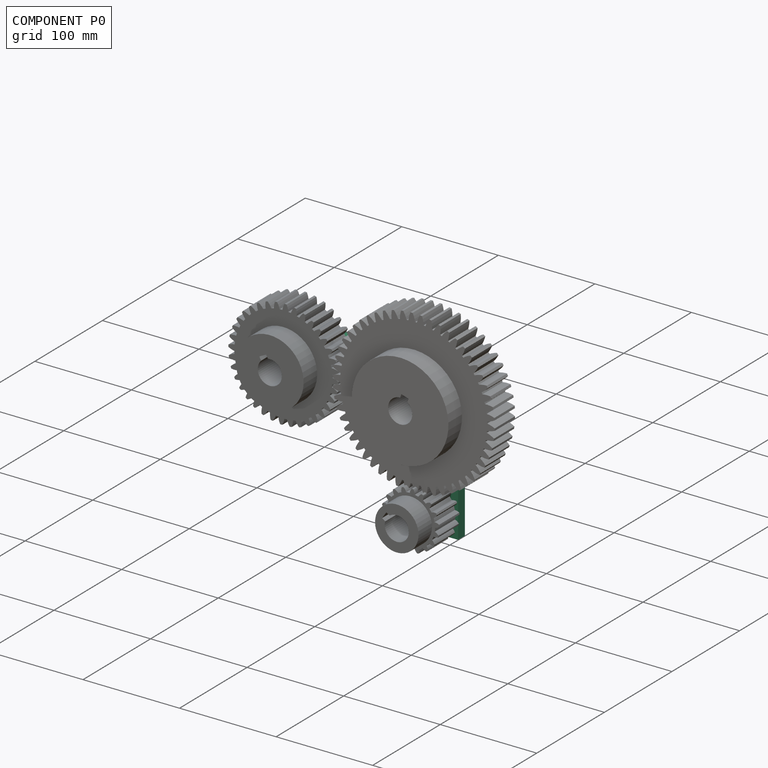
[diagram: component P0 — assembled]
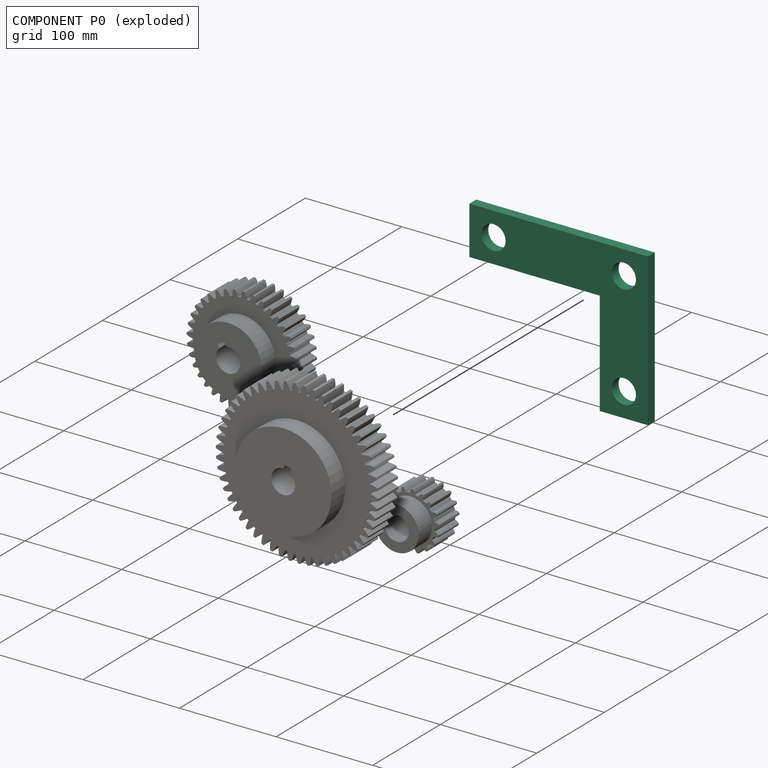
[diagram: component P0 — exploded]
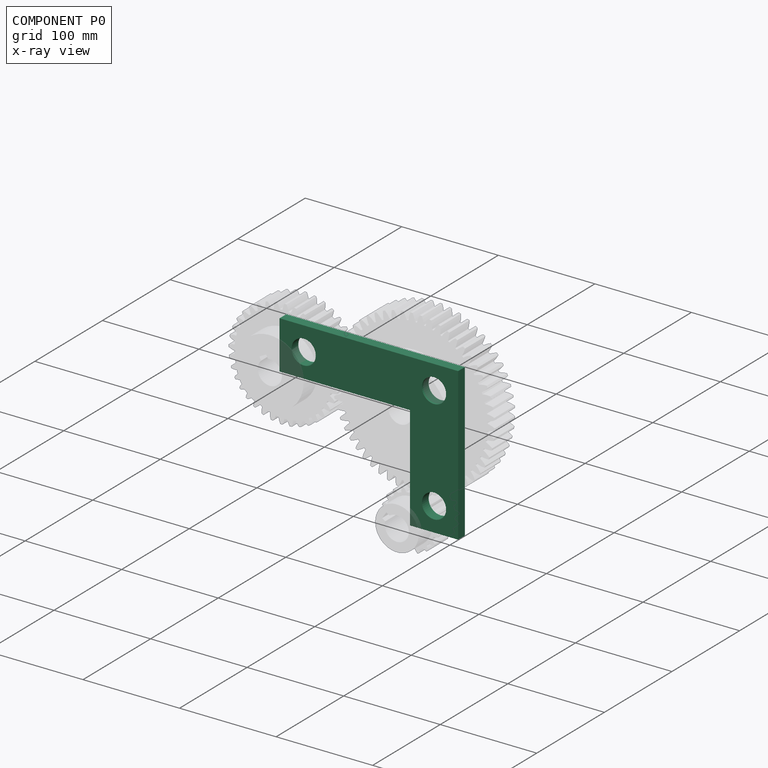
[diagram: component P0 — x-ray view]
COMPONENT P0 — recipe-attached (CADFS 00927241, mesh-verified: the recipe's output STEP matches this component's geometry to below the mesh-comparison resolution (tessellation chordal tolerance ~0.365 mm)).
Held by: REVOLUTE mate "Revolute 1" to P3; REVOLUTE mate "Revolute 2" to P2; REVOLUTE mate "Revolute 3" to P1.
Construction recipe (FeatureScript — the CAD program that rebuilds this solid; sketch coordinates are in the units given by the * unit suffixes, e.g. mm):

FeatureScript 1511;
import(path : "onshape/std/geometry.fs", version : "1511.0");
import(path : "onshape/std/common.fs", version : "1511.0");
const mm = millimeter;
const VERTEX = EntityType.VERTEX;
const EDGE = EntityType.EDGE;
const FACE = EntityType.FACE;
const BODY = EntityType.BODY;
function v(x, y){return vector(x, y);}
function OD(order){return orderDisambiguation(order);}
function OSD(set){return originalSetDisambiguation(set);}
function TD(topology){return topologyDisambiguation(topology);}
function TDD(query){return trueDependencyDisambiguation(query);}
function sQuery(a, b, c) {return sketchEntityQuery(a, b, c);}

annotation { "Feature Type Name" : "Feature", "Feature Type Description" : "" }
export const myFeature = defineFeature(function(context is Context, id is Id, definition is map)
    precondition{}
    {
        {
            var Q0;
            Q0=qCreatedBy(makeId("Top.planeOp"),FACE);
            var sketch = newSketch(context, id + "F0", { "sketchPlane" : qUnion([Q0])});
            skLineSegment(sketch, "E0.bottom", {"start": v(42.5, 25) * mm, "end": v(-92.5, 25) * mm});
            skLineSegment(sketch, "E0.top", {"start": v(92.5, -25) * mm, "end": v(-92.5, -25) * mm});
            skLineSegment(sketch, "E0.left", {"start": v(92.5, 133) * mm, "end": v(92.5, -25) * mm});
            skLineSegment(sketch, "E0.right", {"start": v(-92.5, 25) * mm, "end": v(-92.5, -25) * mm});
            skPoint(sketch, "E0.middle", {"position": v(0, 0) * mm});
            skLineSegment(sketch, "E1", {"start": v(92.5, 133) * mm, "end": v(42.5, 133) * mm});
            skLineSegment(sketch, "E2", {"start": v(42.5, 133) * mm, "end": v(42.5, 25) * mm});
            skPoint(sketch, "E3.orphan", {"position": v(92.5, 25) * mm});
            skSolve(sketch);
        }
        {
            var Q0;
            Q0=makeQuery(id+"F0.imprint","IMPRINT",FACE,{"disambiguationData":[TD([[makeQuery(id+"F0.imprint","IMPRINT",EDGE,{"derivedFrom":sQuery(id+"F0.wireOp",EDGE,"E0.bottom")}),1.0]])]});
            extrude(context, id + "F1", {"entities" : qUnion([Q0]), "depth" : 10 * mm, "offsetDistance" : 25 * mm});
        }
        {
            var Q0;
            Q0=makeQuery(id+"F1.opExtrude","CAP_FACE",FACE,{"disambiguationData":[OSD([sQuery(id+"F0.wireOp",EDGE,"E0.bottom"),sQuery(id+"F0.wireOp",EDGE,"E0.top"),sQuery(id+"F0.wireOp",EDGE,"E0.left"),sQuery(id+"F0.wireOp",EDGE,"E0.right")])],"isStart":false});
            var sketch = newSketch(context, id + "F2", { "sketchPlane" : qUnion([Q0])});
            skLineSegment(sketch, "E4", {"start": v(-67.5, 0) * mm, "end": v(67.5, 0) * mm});
            skLineSegment(sketch, "E5", {"start": v(67.5, 0) * mm, "end": v(67.5, 108) * mm});
            skSolve(sketch);
        }
        {
            var Q0;
            Q0=sQuery(id+"F2.wireOp",VERTEX,"E4.start");
            var Q1;
            Q1=sQuery(id+"F2.wireOp",VERTEX,"E4.end");
            var Q2;
            Q2=sQuery(id+"F2.wireOp",VERTEX,"E5.end");
            var Q3;
            Q3=makeQuery(id+"F1.opExtrude","SWEPT_BODY",BODY,{"disambiguationData":[OSD([sQuery(id+"F0.wireOp",EDGE,"E0.bottom"),sQuery(id+"F0.wireOp",EDGE,"E0.top"),sQuery(id+"F0.wireOp",EDGE,"E0.left"),sQuery(id+"F0.wireOp",EDGE,"E0.right")])]});
            hole(context, id + "F3", {"style" : HoleStyle.SIMPLE, "endStyle" : HoleEndStyle.THROUGH, "holeDiameter" : 25 * mm, "majorDiameter" : 5 * mm, "isTappedThrough" : true, "tappedDepth" : 12 * mm, "tapClearance" : 3, "locations" : qUnion([Q0, Q1, Q2]), "scope" : qUnion([Q3])});
        }
    });
PROVENANCE & LICENSES
Assembly (occurrences, transforms, mates, per-part STEP geometry): AutoMate dataset, Zenodo record 7776208, CC0.
Construction recipes: CADFS (HuggingFace VladPyatov/CADFS, CC-BY-4.0, layered over the ABC dataset), FeatureScript reconstruction programs keyed by ABC model id.
Join: ABC meta listings map ABC model id -> Onshape documentId; within a shared document, parts are matched by geometric signature (bounding-box dims + volume at 0.1% relative tolerance, exact B-rep face/solid counts).
Verification: 4 of this assembly's 4 components carry a recipe attachment, and every attachment is mesh-verified: the CADFS STEP and the AutoMate member STEP were compared as meshes in their shared local frame (symmetric sampled-point-to-mesh distance); worst across the 4 attachments: below the mesh-comparison resolution (tessellation chordal tolerance ~0.365 mm) on a 243 mm part.
Renders: orthographic iso camera (az 35 / el 25); the floor grid conveys scale (grid pitch printed in each image; no ruler). In the exploded view each component is displaced by its stored offset vector: the offsets alone carry the explosion direction (mate normal/axis signs are not orientation cues and do not encode it), and separation distances are assigned per mate-chain, not proportionally to assembly-order depth.
